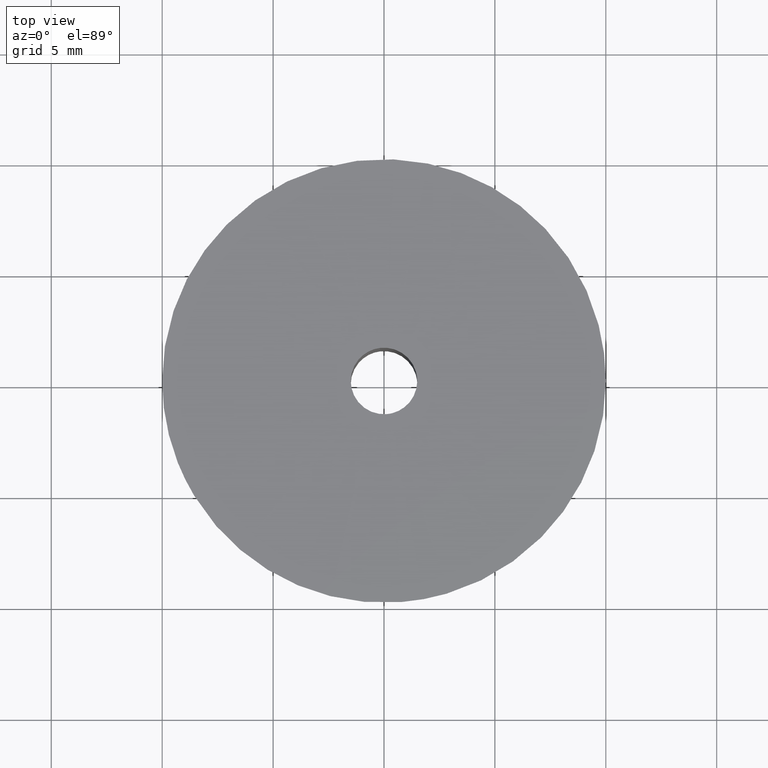
[diagram: clean part render]
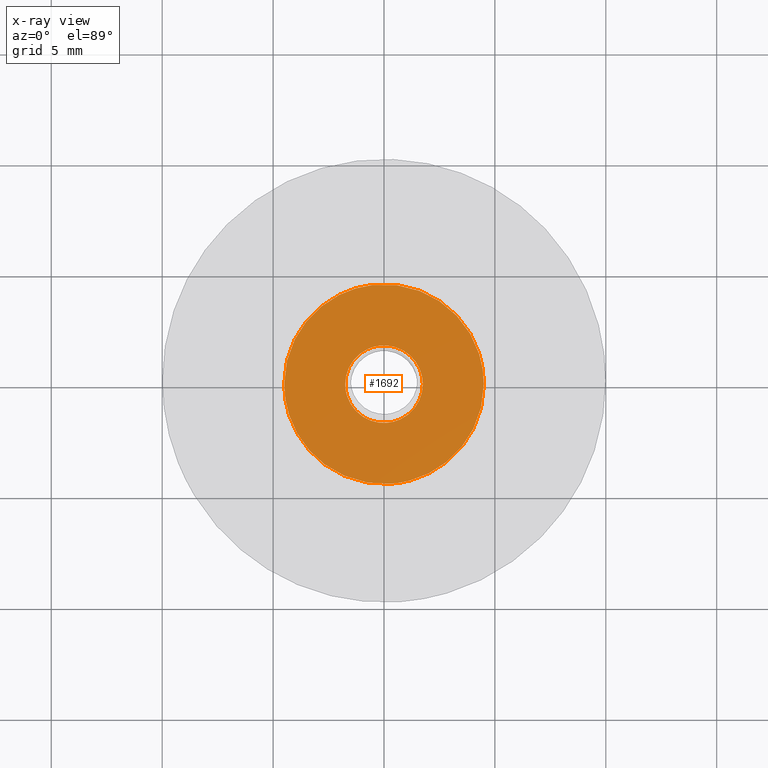
[diagram: x-ray — body ghosted, one internal face saturated and labeled with its STEP entity id]
A machine part, top view, then the same camera in x-ray: the body is ghosted and one INTERNAL B-rep face — a face not visible from any outside direction — is saturated and labeled: STEP entity #1692.
In plain terms, the highlighted face is a freeform B-spline surface patch.
Its self-contained STEP definition (entity closure, byte-faithful):
#1130=CARTESIAN_POINT('',(-0.206558783665987,1.737766805094728,8.499999999999901));
#1131=VERTEX_POINT('',#1130);
#1137=CARTESIAN_POINT('',(1.750000000000000,0.0,8.499999999999901));
#1138=VERTEX_POINT('',#1137);
#1139=CARTESIAN_POINT('',(-0.206558783665987,1.737766805094728,8.499999999999901));
#1140=CARTESIAN_POINT('',(-0.103641639942065,1.750000000000000,8.499999999999901));
#1141=CARTESIAN_POINT('',(0.0,1.750000000000000,8.499999999999901));
#1142=CARTESIAN_POINT('',(1.750000000000000,1.750000000000000,8.499999999999902));
#1143=CARTESIAN_POINT('',(1.750000000000000,0.0,8.499999999999901));
#1151=(BOUNDED_CURVE()B_SPLINE_CURVE(2,(#1139,#1140,#1141,#1142,#1143),.UNSPECIFIED.,.F.,.U.)B_SPLINE_CURVE_WITH_KNOTS((3,2,3),(0.229562583118307,0.250000000000000,0.500000000000000),.UNSPECIFIED.)CURVE()GEOMETRIC_REPRESENTATION_ITEM()RATIONAL_B_SPLINE_CURVE((0.956026969013702,0.976056076741154,1.0,0.707106781186547,1.0))REPRESENTATION_ITEM(''));
#1152=EDGE_CURVE('',#1131,#1138,#1151,.T.);
#1154=CARTESIAN_POINT('',(0.106834944207275,-1.746735897236966,8.499999999999901));
#1155=VERTEX_POINT('',#1154);
#1156=CARTESIAN_POINT('',(1.750000000000000,0.0,8.499999999999901));
#1157=CARTESIAN_POINT('',(1.749999999999999,-1.646235617044799,8.499999999999902));
#1158=CARTESIAN_POINT('',(0.106834944207275,-1.746735897236966,8.499999999999901));
#1166=(BOUNDED_CURVE()B_SPLINE_CURVE(2,(#1156,#1157,#1158),.UNSPECIFIED.,.F.,.U.)B_SPLINE_CURVE_WITH_KNOTS((3,3),(0.500000000000000,0.739332962237766),.UNSPECIFIED.)CURVE()GEOMETRIC_REPRESENTATION_ITEM()RATIONAL_B_SPLINE_CURVE((1.0,0.719603993288089,0.976072041664195))REPRESENTATION_ITEM(''));
#1167=EDGE_CURVE('',#1138,#1155,#1166,.T.);
#1241=CARTESIAN_POINT('',(-1.750000000000000,0.0,8.499999999999901));
#1242=VERTEX_POINT('',#1241);
#1243=CARTESIAN_POINT('',(0.106834944207275,-1.746735897236966,8.499999999999901));
#1244=CARTESIAN_POINT('',(0.053467335793865,-1.750000000000000,8.499999999999901));
#1245=CARTESIAN_POINT('',(0.0,-1.750000000000000,8.499999999999901));
#1246=CARTESIAN_POINT('',(-1.750000000000000,-1.750000000000000,8.499999999999902));
#1247=CARTESIAN_POINT('',(-1.750000000000000,0.0,8.499999999999901));
#1255=(BOUNDED_CURVE()B_SPLINE_CURVE(2,(#1243,#1244,#1245,#1246,#1247),.UNSPECIFIED.,.F.,.U.)B_SPLINE_CURVE_WITH_KNOTS((3,2,3),(0.739332962237765,0.750000000000000,1.0),.UNSPECIFIED.)CURVE()GEOMETRIC_REPRESENTATION_ITEM()RATIONAL_B_SPLINE_CURVE((0.976072041664193,0.987502787898457,1.0,0.707106781186547,1.0))REPRESENTATION_ITEM(''));
#1256=EDGE_CURVE('',#1155,#1242,#1255,.T.);
#1258=CARTESIAN_POINT('',(-1.750000000000000,0.0,8.499999999999901));
#1259=CARTESIAN_POINT('',(-1.750000000000000,1.554306435515460,8.499999999999899));
#1260=CARTESIAN_POINT('',(-0.206558783665987,1.737766805094728,8.499999999999901));
#1268=(BOUNDED_CURVE()B_SPLINE_CURVE(2,(#1258,#1259,#1260),.UNSPECIFIED.,.F.,.U.)B_SPLINE_CURVE_WITH_KNOTS((3,3),(0.0,0.229562583118307),.UNSPECIFIED.)CURVE()GEOMETRIC_REPRESENTATION_ITEM()RATIONAL_B_SPLINE_CURVE((1.0,0.731050704445394,0.956026969013702))REPRESENTATION_ITEM(''));
#1269=EDGE_CURVE('',#1242,#1131,#1268,.T.);
#1301=CARTESIAN_POINT('',(-0.531147774266757,4.468543615301460,8.499999999999609));
#1302=VERTEX_POINT('',#1301);
#1303=CARTESIAN_POINT('',(4.500000000000000,0.0,8.499999999999901));
#1304=VERTEX_POINT('',#1303);
#1305=CARTESIAN_POINT('',(-0.531147774266757,4.468543615301460,8.499999999999609));
#1306=CARTESIAN_POINT('',(-0.266505364385324,4.500000000000000,8.499999999999901));
#1307=CARTESIAN_POINT('',(0.0,4.500000000000000,8.499999999999901));
#1308=CARTESIAN_POINT('',(4.500000000000000,4.500000000000000,8.499999999999902));
#1309=CARTESIAN_POINT('',(4.500000000000000,0.0,8.499999999999901));
#1317=(BOUNDED_CURVE()B_SPLINE_CURVE(2,(#1305,#1306,#1307,#1308,#1309),.UNSPECIFIED.,.F.,.U.)B_SPLINE_CURVE_WITH_KNOTS((3,2,3),(0.229562711093287,0.250000000000000,0.500000000000000),.UNSPECIFIED.)CURVE()GEOMETRIC_REPRESENTATION_ITEM()RATIONAL_B_SPLINE_CURVE((0.956027219850317,0.976056226673169,1.0,0.707106781186547,1.0))REPRESENTATION_ITEM(''));
#1318=EDGE_CURVE('',#1302,#1304,#1317,.T.);
#1359=CARTESIAN_POINT('',(0.274711092336996,-4.491607041549049,8.499999999999869));
#1360=VERTEX_POINT('',#1359);
#1366=CARTESIAN_POINT('',(4.500000000000000,0.0,8.499999999999901));
#1367=CARTESIAN_POINT('',(4.500000000000000,-4.233184227509605,8.499999999999901));
#1368=CARTESIAN_POINT('',(0.274711092336996,-4.491607041549049,8.499999999999869));
#1376=(BOUNDED_CURVE()B_SPLINE_CURVE(2,(#1366,#1367,#1368),.UNSPECIFIED.,.F.,.U.)B_SPLINE_CURVE_WITH_KNOTS((3,3),(0.500000000000000,0.739333244040757),.UNSPECIFIED.)CURVE()GEOMETRIC_REPRESENTATION_ITEM()RATIONAL_B_SPLINE_CURVE((1.0,0.719603663135349,0.976072645622392))REPRESENTATION_ITEM(''));
#1377=EDGE_CURVE('',#1304,#1360,#1376,.T.);
#1400=CARTESIAN_POINT('',(-4.500000000000000,0.0,8.499999999999901));
#1401=VERTEX_POINT('',#1400);
#1402=CARTESIAN_POINT('',(-4.500000000000000,0.0,8.499999999999901));
#1403=CARTESIAN_POINT('',(-4.500000000000000,3.996791024848195,8.499999999999901));
#1404=CARTESIAN_POINT('',(-0.531147774266757,4.468543615301461,8.499999999999609));
#1412=(BOUNDED_CURVE()B_SPLINE_CURVE(2,(#1402,#1403,#1404),.UNSPECIFIED.,.F.,.U.)B_SPLINE_CURVE_WITH_KNOTS((3,3),(0.0,0.229562711093287),.UNSPECIFIED.)CURVE()GEOMETRIC_REPRESENTATION_ITEM()RATIONAL_B_SPLINE_CURVE((1.0,0.731050554513378,0.956027219850317))REPRESENTATION_ITEM(''));
#1413=EDGE_CURVE('',#1401,#1302,#1412,.T.);
#1415=CARTESIAN_POINT('',(0.274711092336996,-4.491607041549049,8.499999999999869));
#1416=CARTESIAN_POINT('',(0.137483756775067,-4.499999999999999,8.499999999999901));
#1417=CARTESIAN_POINT('',(0.0,-4.500000000000000,8.499999999999901));
#1418=CARTESIAN_POINT('',(-4.500000000000000,-4.500000000000000,8.499999999999902));
#1419=CARTESIAN_POINT('',(-4.500000000000000,0.0,8.499999999999901));
#1427=(BOUNDED_CURVE()B_SPLINE_CURVE(2,(#1415,#1416,#1417,#1418,#1419),.UNSPECIFIED.,.F.,.U.)B_SPLINE_CURVE_WITH_KNOTS((3,2,3),(0.739333244040757,0.750000000000000,1.0),.UNSPECIFIED.)CURVE()GEOMETRIC_REPRESENTATION_ITEM()RATIONAL_B_SPLINE_CURVE((0.976072645622392,0.987503118051199,1.0,0.707106781186547,1.0))REPRESENTATION_ITEM(''));
#1428=EDGE_CURVE('',#1360,#1401,#1427,.T.);
#1675=CARTESIAN_POINT('',(-4.949549982556253,-4.949440710012754,8.499999999999901));
#1676=CARTESIAN_POINT('',(4.949550223955065,-4.949440710012754,8.499999999999901));
#1677=CARTESIAN_POINT('',(-4.949549982556253,4.949468149010976,8.499999999999901));
#1678=CARTESIAN_POINT('',(4.949550223955065,4.949468149010976,8.499999999999901));
#1679=B_SPLINE_SURFACE_WITH_KNOTS('',1,1,((#1675,#1677),(#1676,#1678)),.UNSPECIFIED.,.F.,.F.,.U.,(2,2),(2,2),(0.0,9.899100206511317),(0.0,9.898908859023729),.UNSPECIFIED.);
#1680=ORIENTED_EDGE('',*,*,#1413,.T.);
#1681=ORIENTED_EDGE('',*,*,#1318,.T.);
#1682=ORIENTED_EDGE('',*,*,#1377,.T.);
#1683=ORIENTED_EDGE('',*,*,#1428,.T.);
#1684=EDGE_LOOP('',(#1680,#1681,#1682,#1683));
#1685=FACE_OUTER_BOUND('',#1684,.T.);
#1686=ORIENTED_EDGE('',*,*,#1167,.F.);
#1687=ORIENTED_EDGE('',*,*,#1152,.F.);
#1688=ORIENTED_EDGE('',*,*,#1269,.F.);
#1689=ORIENTED_EDGE('',*,*,#1256,.F.);
#1690=EDGE_LOOP('',(#1686,#1687,#1688,#1689));
#1691=FACE_BOUND('',#1690,.T.);
#1692=ADVANCED_FACE('',(#1685,#1691),#1679,.F.);